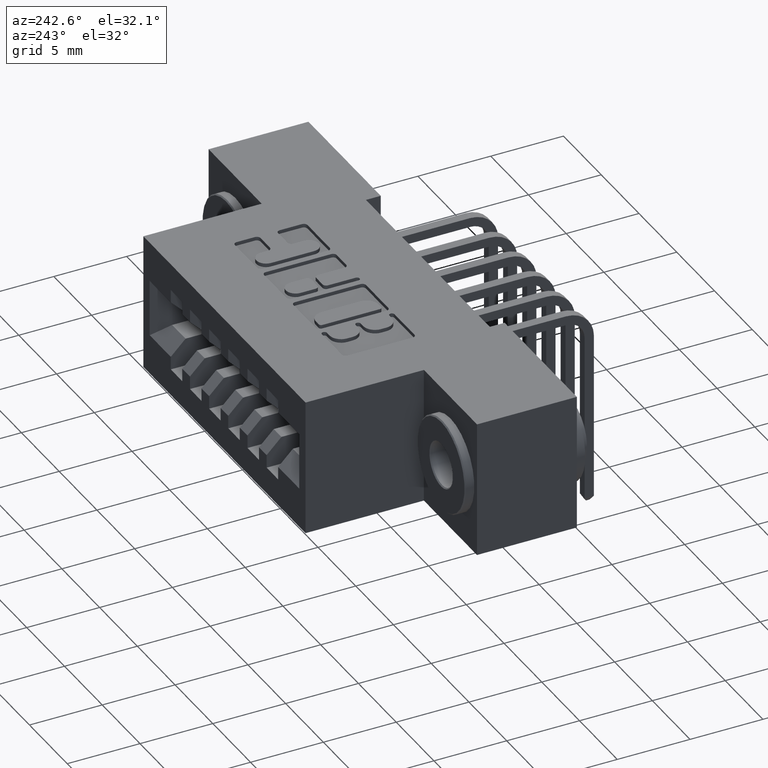
[diagram: clean part render]
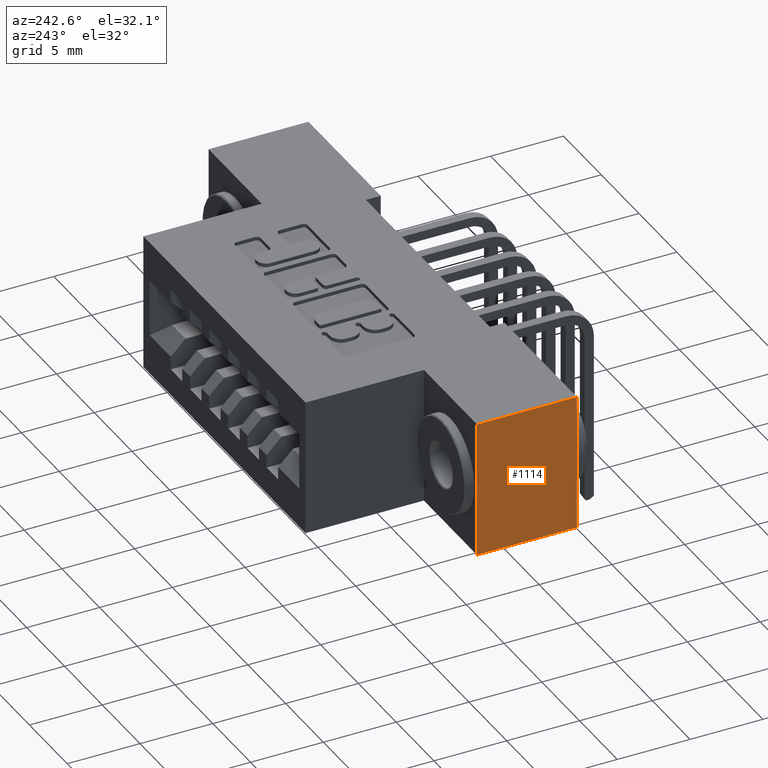
[diagram: same view with one face highlighted and labeled with its STEP entity id]
A machine part, auxiliary view. The second image highlights one B-rep face of the part: STEP entity #1114.
In plain terms, the highlighted planar face has unit normal (1, 0, 0).
Its self-contained STEP definition (entity closure, byte-faithful):
#69 = CARTESIAN_POINT ( 'NONE',  ( -2.134256245050205600E-018, 0.2699999999999999600, 0.0000000000000000000 ) ) ;
#405 = VERTEX_POINT ( 'NONE', #69 ) ;
#564 = CARTESIAN_POINT ( 'NONE',  ( 0.0000000000000000000, 0.5899999999999999700, -0.3700000000000000000 ) ) ;
#600 = DIRECTION ( 'NONE',  ( -0.0000000000000000000, -1.000000000000000000, -0.0000000000000000000 ) ) ;
#698 = LINE ( 'NONE', #1231, #2383 ) ;
#1114 = ADVANCED_FACE ( 'NONE', ( #4740 ), #8111, .F. ) ;
#1231 = CARTESIAN_POINT ( 'NONE',  ( -4.695363739110452100E-017, 0.2699999999999999600, -0.3700000000000000000 ) ) ;
#1243 = DIRECTION ( 'NONE',  ( 1.211334625569035700E-016, 0.0000000000000000000, 1.000000000000000000 ) ) ;
#1285 = VECTOR ( 'NONE', #1660, 39.37007874015748100 ) ;
#1612 = VERTEX_POINT ( 'NONE', #5420 ) ;
#1660 = DIRECTION ( 'NONE',  ( -0.0000000000000000000, -0.0000000000000000000, 1.000000000000000000 ) ) ;
#1734 = LINE ( 'NONE', #6371, #1285 ) ;
#1878 = CARTESIAN_POINT ( 'NONE',  ( -4.695363739110452100E-017, 0.2699999999999999600, -0.3700000000000000000 ) ) ;
#2383 = VECTOR ( 'NONE', #1243, 39.37007874015748100 ) ;
#2459 = DIRECTION ( 'NONE',  ( -0.0000000000000000000, -1.000000000000000000, -0.0000000000000000000 ) ) ;
#2549 = EDGE_CURVE ( 'NONE', #405, #8352, #2901, .T. ) ;
#2596 = CARTESIAN_POINT ( 'NONE',  ( 0.0000000000000000000, 0.5899999999999999700, 0.0000000000000000000 ) ) ;
#2901 = LINE ( 'NONE', #2596, #4942 ) ;
#3262 = VECTOR ( 'NONE', #600, 39.37007874015748100 ) ;
#3492 = LINE ( 'NONE', #564, #3262 ) ;
#4035 = EDGE_CURVE ( 'NONE', #1612, #8352, #1734, .T. ) ;
#4740 = FACE_OUTER_BOUND ( 'NONE', #8930, .T. ) ;
#4942 = VECTOR ( 'NONE', #2459, 39.37007874015748100 ) ;
#5420 = CARTESIAN_POINT ( 'NONE',  ( 0.0000000000000000000, 0.0000000000000000000, -0.3700000000000000000 ) ) ;
#6371 = CARTESIAN_POINT ( 'NONE',  ( 0.0000000000000000000, 0.0000000000000000000, 0.0000000000000000000 ) ) ;
#6499 = EDGE_CURVE ( 'NONE', #7989, #1612, #3492, .T. ) ;
#6673 = ORIENTED_EDGE ( 'NONE', *, *, #8158, .F. ) ;
#7110 = ORIENTED_EDGE ( 'NONE', *, *, #4035, .T. ) ;
#7472 = AXIS2_PLACEMENT_3D ( 'NONE', #8761, #8056, #8033 ) ;
#7989 = VERTEX_POINT ( 'NONE', #1878 ) ;
#8033 = DIRECTION ( 'NONE',  ( 0.0000000000000000000, 0.0000000000000000000, -1.000000000000000000 ) ) ;
#8056 = DIRECTION ( 'NONE',  ( 1.000000000000000000, -0.0000000000000000000, 0.0000000000000000000 ) ) ;
#8111 = PLANE ( 'NONE',  #7472 ) ;
#8158 = EDGE_CURVE ( 'NONE', #7989, #405, #698, .T. ) ;
#8352 = VERTEX_POINT ( 'NONE', #8803 ) ;
#8427 = ORIENTED_EDGE ( 'NONE', *, *, #6499, .T. ) ;
#8761 = CARTESIAN_POINT ( 'NONE',  ( 0.0000000000000000000, 0.5899999999999999700, 0.0000000000000000000 ) ) ;
#8803 = CARTESIAN_POINT ( 'NONE',  ( 0.0000000000000000000, 0.0000000000000000000, 0.0000000000000000000 ) ) ;
#8836 = ORIENTED_EDGE ( 'NONE', *, *, #2549, .F. ) ;
#8930 = EDGE_LOOP ( 'NONE', ( #6673, #8427, #7110, #8836 ) ) ;